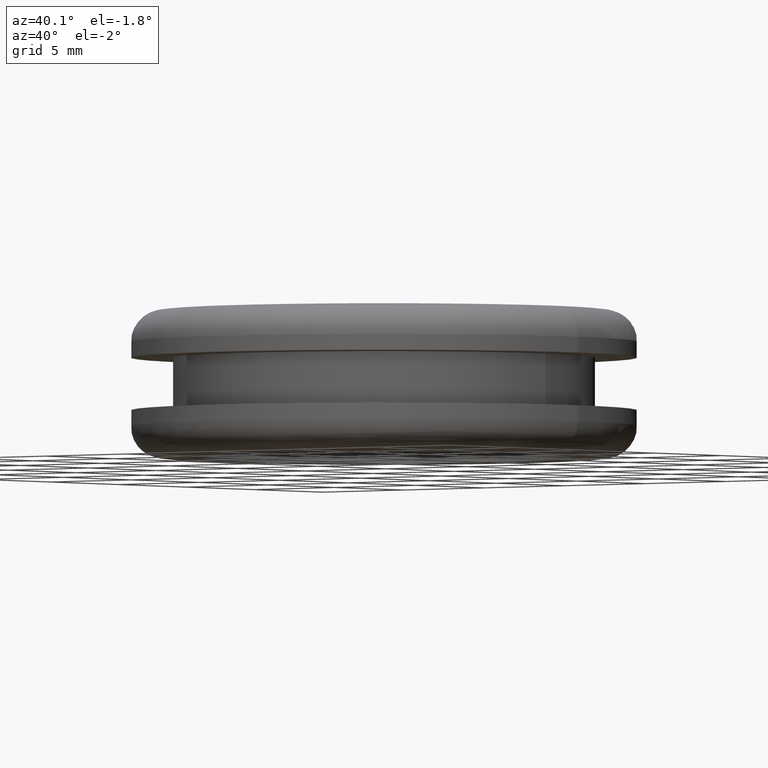
[diagram: clean part render]
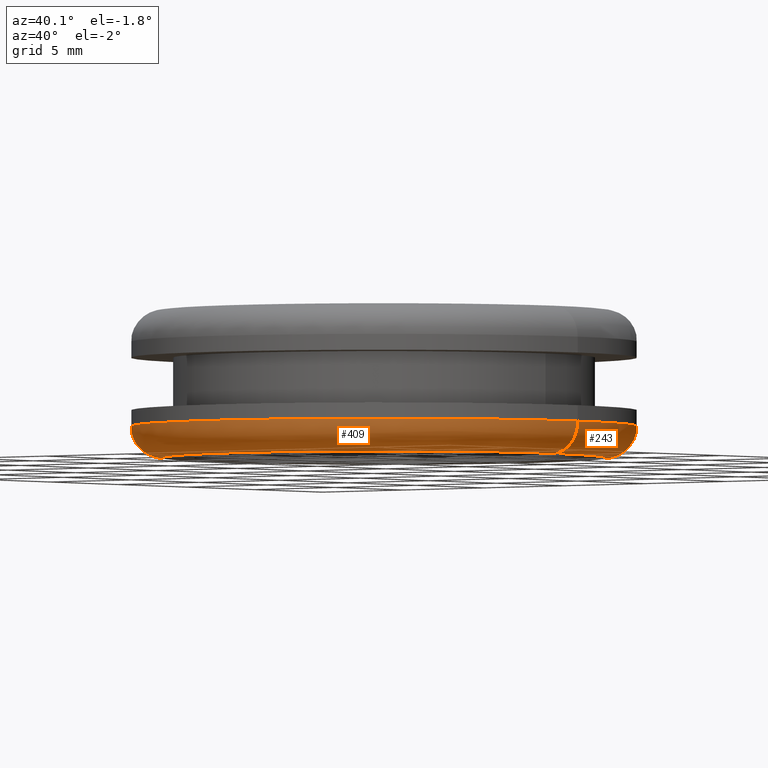
[diagram: same view with one multi-face feature highlighted, each face labeled with its STEP entity id]
A machine part, auxiliary view. The highlighted faces form ONE feature: a constant-radius fillet chain: 2 tangent blend faces with common blend radius 1.5 mm. The faces share edges in the B-rep.
Their STEP definitions:
[1] entity #243 (Torus):
#4 = CIRCLE ( 'NONE', #65, 1.500000000000001300 ) ;
#6 = VERTEX_POINT ( 'NONE', #177 ) ;
#7 = DIRECTION ( 'NONE',  ( 0.0000000000000000000, 0.0000000000000000000, -1.000000000000000000 ) ) ;
#13 = DIRECTION ( 'NONE',  ( -1.000000000000000000, 0.0000000000000000000, 0.0000000000000000000 ) ) ;
#60 = CARTESIAN_POINT ( 'NONE',  ( 104.8968217177672100, 0.0000000000000000000, 141.8594493936722100 ) ) ;
#65 = AXIS2_PLACEMENT_3D ( 'NONE', #223, #457, #345 ) ;
#70 = EDGE_CURVE ( 'NONE', #391, #128, #273, .T. ) ;
#112 = DIRECTION ( 'NONE',  ( -1.000000000000000000, 0.0000000000000000000, 0.0000000000000000000 ) ) ;
#119 = AXIS2_PLACEMENT_3D ( 'NONE', #60, #263, #13 ) ;
#121 = CIRCLE ( 'NONE', #437, 12.00000000000990500 ) ;
#128 = VERTEX_POINT ( 'NONE', #255 ) ;
#134 = DIRECTION ( 'NONE',  ( -0.0000000000000000000, -1.000000000000000000, -0.0000000000000000000 ) ) ;
#146 = CIRCLE ( 'NONE', #366, 1.500000000000001300 ) ;
#149 = CARTESIAN_POINT ( 'NONE',  ( 104.8968217177672100, 0.0000000000000000000, 143.3594493936722100 ) ) ;
#155 = ORIENTED_EDGE ( 'NONE', *, *, #317, .T. ) ;
#168 = EDGE_CURVE ( 'NONE', #6, #391, #146, .T. ) ;
#177 = CARTESIAN_POINT ( 'NONE',  ( 92.89682171775730500, 0.0000000000000000000, 143.3594493936722100 ) ) ;
#180 = VERTEX_POINT ( 'NONE', #228 ) ;
#187 = ORIENTED_EDGE ( 'NONE', *, *, #469, .T. ) ;
#196 = CARTESIAN_POINT ( 'NONE',  ( 94.39682171775730500, 0.0000000000000000000, 143.3594493936722100 ) ) ;
#203 = DIRECTION ( 'NONE',  ( -1.000000000000000000, 0.0000000000000000000, 0.0000000000000000000 ) ) ;
#223 = CARTESIAN_POINT ( 'NONE',  ( 115.3968217177771200, 1.285879139105933300E-015, 143.3594493936722100 ) ) ;
#228 = CARTESIAN_POINT ( 'NONE',  ( 116.8968217177771200, 1.469576158978035600E-015, 143.3594493936722100 ) ) ;
#237 = EDGE_LOOP ( 'NONE', ( #187, #155, #449, #246 ) ) ;
#243 = ADVANCED_FACE ( 'NONE', ( #328 ), #308, .T. ) ;
#246 = ORIENTED_EDGE ( 'NONE', *, *, #168, .F. ) ;
#255 = CARTESIAN_POINT ( 'NONE',  ( 115.3968217177771200, 1.377727649041984500E-015, 141.8594493936722100 ) ) ;
#263 = DIRECTION ( 'NONE',  ( 0.0000000000000000000, 0.0000000000000000000, -1.000000000000000000 ) ) ;
#273 = CIRCLE ( 'NONE', #119, 10.50000000000990500 ) ;
#308 = TOROIDAL_SURFACE ( 'NONE', #426, 10.50000000000990100, 1.500000000000000000 ) ;
#317 = EDGE_CURVE ( 'NONE', #180, #128, #4, .T. ) ;
#325 = CARTESIAN_POINT ( 'NONE',  ( 104.8968217177672100, 0.0000000000000000000, 143.3594493936722100 ) ) ;
#328 = FACE_OUTER_BOUND ( 'NONE', #237, .T. ) ;
#345 = DIRECTION ( 'NONE',  ( -1.000000000000000000, -1.224646799147352000E-016, 0.0000000000000000000 ) ) ;
#353 = DIRECTION ( 'NONE',  ( 0.0000000000000000000, 0.0000000000000000000, -1.000000000000000000 ) ) ;
#366 = AXIS2_PLACEMENT_3D ( 'NONE', #196, #134, #353 ) ;
#391 = VERTEX_POINT ( 'NONE', #440 ) ;
#426 = AXIS2_PLACEMENT_3D ( 'NONE', #149, #7, #112 ) ;
#437 = AXIS2_PLACEMENT_3D ( 'NONE', #325, #470, #203 ) ;
#440 = CARTESIAN_POINT ( 'NONE',  ( 94.39682171775730500, 0.0000000000000000000, 141.8594493936722100 ) ) ;
#449 = ORIENTED_EDGE ( 'NONE', *, *, #70, .F. ) ;
#457 = DIRECTION ( 'NONE',  ( -1.224646799147353200E-016, 1.000000000000000000, 0.0000000000000000000 ) ) ;
#469 = EDGE_CURVE ( 'NONE', #6, #180, #121, .T. ) ;
#470 = DIRECTION ( 'NONE',  ( 0.0000000000000000000, 0.0000000000000000000, -1.000000000000000000 ) ) ;
[2] entity #409 (Torus):
#4 = CIRCLE ( 'NONE', #65, 1.500000000000001300 ) ;
#6 = VERTEX_POINT ( 'NONE', #177 ) ;
#33 = DIRECTION ( 'NONE',  ( -1.000000000000000000, 0.0000000000000000000, 0.0000000000000000000 ) ) ;
#64 = CIRCLE ( 'NONE', #252, 10.50000000000990500 ) ;
#65 = AXIS2_PLACEMENT_3D ( 'NONE', #223, #457, #345 ) ;
#94 = ORIENTED_EDGE ( 'NONE', *, *, #317, .F. ) ;
#110 = DIRECTION ( 'NONE',  ( 0.0000000000000000000, 0.0000000000000000000, -1.000000000000000000 ) ) ;
#128 = VERTEX_POINT ( 'NONE', #255 ) ;
#134 = DIRECTION ( 'NONE',  ( -0.0000000000000000000, -1.000000000000000000, -0.0000000000000000000 ) ) ;
#146 = CIRCLE ( 'NONE', #366, 1.500000000000001300 ) ;
#159 = AXIS2_PLACEMENT_3D ( 'NONE', #371, #110, #288 ) ;
#165 = ORIENTED_EDGE ( 'NONE', *, *, #168, .T. ) ;
#168 = EDGE_CURVE ( 'NONE', #6, #391, #146, .T. ) ;
#174 = CARTESIAN_POINT ( 'NONE',  ( 104.8968217177672100, 0.0000000000000000000, 143.3594493936722100 ) ) ;
#177 = CARTESIAN_POINT ( 'NONE',  ( 92.89682171775730500, 0.0000000000000000000, 143.3594493936722100 ) ) ;
#180 = VERTEX_POINT ( 'NONE', #228 ) ;
#192 = ORIENTED_EDGE ( 'NONE', *, *, #405, .F. ) ;
#196 = CARTESIAN_POINT ( 'NONE',  ( 94.39682171775730500, 0.0000000000000000000, 143.3594493936722100 ) ) ;
#199 = TOROIDAL_SURFACE ( 'NONE', #312, 10.50000000000990100, 1.500000000000000000 ) ;
#223 = CARTESIAN_POINT ( 'NONE',  ( 115.3968217177771200, 1.285879139105933300E-015, 143.3594493936722100 ) ) ;
#228 = CARTESIAN_POINT ( 'NONE',  ( 116.8968217177771200, 1.469576158978035600E-015, 143.3594493936722100 ) ) ;
#248 = DIRECTION ( 'NONE',  ( 0.0000000000000000000, 0.0000000000000000000, -1.000000000000000000 ) ) ;
#252 = AXIS2_PLACEMENT_3D ( 'NONE', #478, #248, #33 ) ;
#255 = CARTESIAN_POINT ( 'NONE',  ( 115.3968217177771200, 1.377727649041984500E-015, 141.8594493936722100 ) ) ;
#288 = DIRECTION ( 'NONE',  ( -1.000000000000000000, 0.0000000000000000000, 0.0000000000000000000 ) ) ;
#289 = DIRECTION ( 'NONE',  ( -1.000000000000000000, 0.0000000000000000000, 0.0000000000000000000 ) ) ;
#312 = AXIS2_PLACEMENT_3D ( 'NONE', #174, #445, #289 ) ;
#317 = EDGE_CURVE ( 'NONE', #180, #128, #4, .T. ) ;
#345 = DIRECTION ( 'NONE',  ( -1.000000000000000000, -1.224646799147352000E-016, 0.0000000000000000000 ) ) ;
#352 = EDGE_CURVE ( 'NONE', #180, #6, #377, .T. ) ;
#353 = DIRECTION ( 'NONE',  ( 0.0000000000000000000, 0.0000000000000000000, -1.000000000000000000 ) ) ;
#364 = ORIENTED_EDGE ( 'NONE', *, *, #352, .T. ) ;
#366 = AXIS2_PLACEMENT_3D ( 'NONE', #196, #134, #353 ) ;
#370 = FACE_OUTER_BOUND ( 'NONE', #388, .T. ) ;
#371 = CARTESIAN_POINT ( 'NONE',  ( 104.8968217177672100, 0.0000000000000000000, 143.3594493936722100 ) ) ;
#377 = CIRCLE ( 'NONE', #159, 12.00000000000990500 ) ;
#388 = EDGE_LOOP ( 'NONE', ( #94, #364, #165, #192 ) ) ;
#391 = VERTEX_POINT ( 'NONE', #440 ) ;
#405 = EDGE_CURVE ( 'NONE', #128, #391, #64, .T. ) ;
#409 = ADVANCED_FACE ( 'NONE', ( #370 ), #199, .T. ) ;
#440 = CARTESIAN_POINT ( 'NONE',  ( 94.39682171775730500, 0.0000000000000000000, 141.8594493936722100 ) ) ;
#445 = DIRECTION ( 'NONE',  ( 0.0000000000000000000, 0.0000000000000000000, -1.000000000000000000 ) ) ;
#457 = DIRECTION ( 'NONE',  ( -1.224646799147353200E-016, 1.000000000000000000, 0.0000000000000000000 ) ) ;
#478 = CARTESIAN_POINT ( 'NONE',  ( 104.8968217177672100, 0.0000000000000000000, 141.8594493936722100 ) ) ;